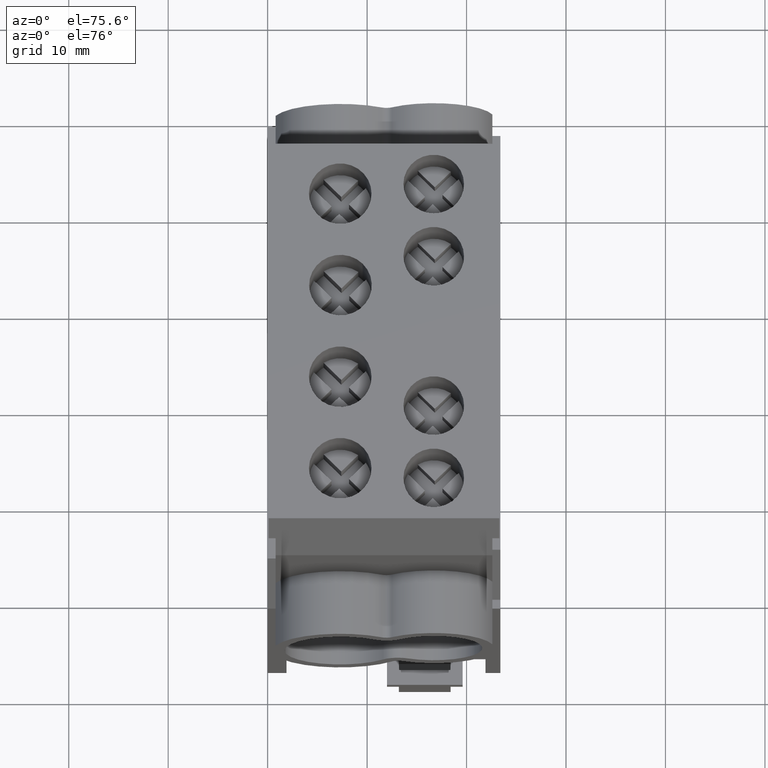
[diagram: clean part render]
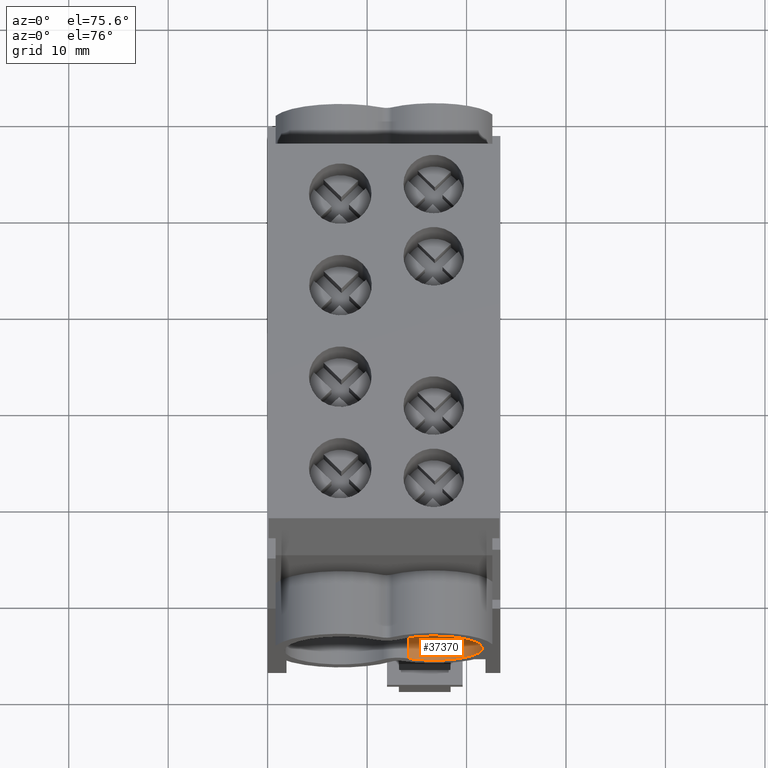
[diagram: same view with one face highlighted and labeled with its STEP entity id]
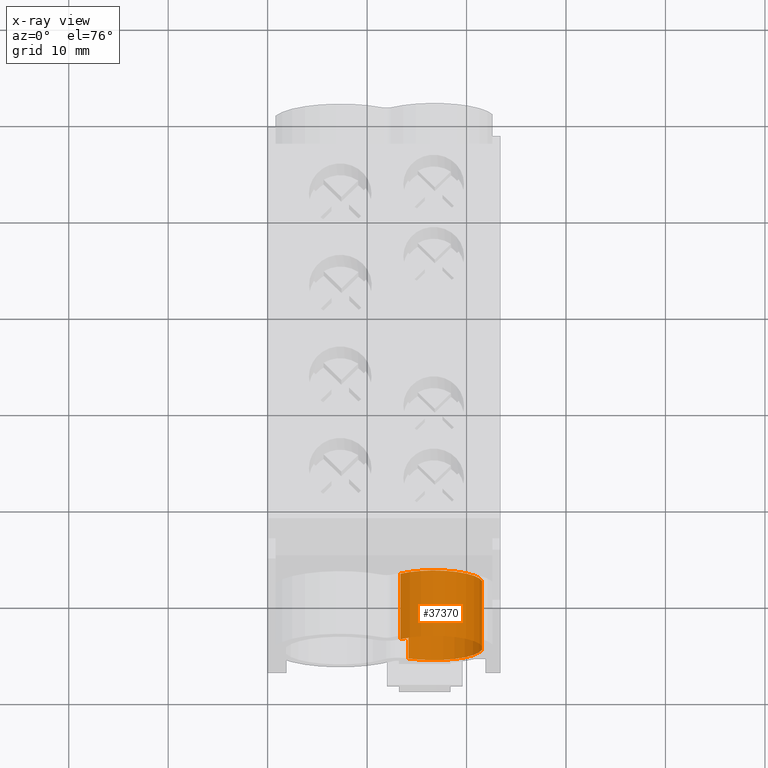
[diagram: x-ray of the same camera — body ghosted, the highlighted face saturated]
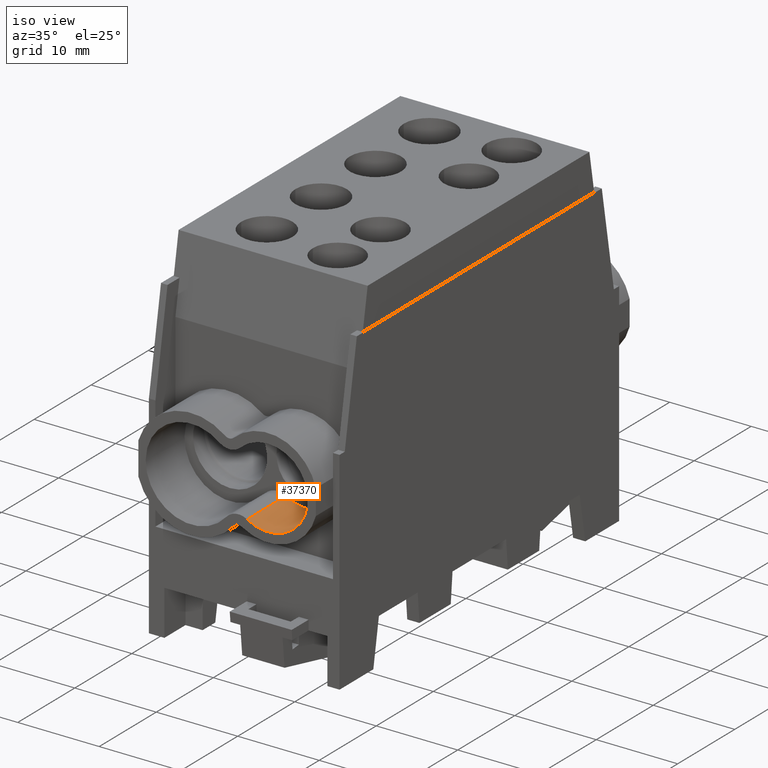
[diagram: same view with one face highlighted and labeled with its STEP entity id]
A machine part, auxiliary view. The second image highlights one B-rep face of the part: STEP entity #37370.
The next image is the same camera in x-ray: the body ghosted, the highlighted face saturated — about 0% of this face is hidden behind the body in this view.
A second angle (iso view) of the same face is appended — the face is thin or edge-on in the first view.
In plain terms, the highlighted cylindrical surface (partial cylindrical patch) has radius 4.9 mm, axis along (0, -1, 0).
Its self-contained STEP definition (entity closure, byte-faithful):
#6110=CARTESIAN_POINT('',(5.00000000000001,-27.5,8.19999999999999));
#6120=DIRECTION('',(0.,-1.,0.));
#6130=DIRECTION('',(0.,0.,-1.));
#6140=AXIS2_PLACEMENT_3D('',#6110,#6120,#6130);
#6150=CIRCLE('',#6140,4.9);
#6160=CARTESIAN_POINT('',(2.45328816581498,-27.5,4.01380138626677));
#6170=VERTEX_POINT('',#6160);
#6180=CARTESIAN_POINT('',(1.6295738610946,-27.5,11.7567158506385));
#6190=VERTEX_POINT('',#6180);
#6200=EDGE_CURVE('',#6170,#6190,#6150,.T.);
#37060=CARTESIAN_POINT('',(5.00000000000001,-27.5,8.19999999999999));
#37070=DIRECTION('',(0.,-1.,0.));
#37080=DIRECTION('',(0.,0.,-1.));
#37090=AXIS2_PLACEMENT_3D('',#37060,#37070,#37080);
#37100=CYLINDRICAL_SURFACE('',#37090,4.9);
#37110=ORIENTED_EDGE('',*,*,#6200,.T.);
#37120=CARTESIAN_POINT('',(2.45328816581499,-19.5,4.01380138626677));
#37130=DIRECTION('',(1.22108605138914E-16,-1.,1.77619756370172E-16));
#37140=VECTOR('',#37130,1.);
#37150=LINE('',#37120,#37140);
#37160=CARTESIAN_POINT('',(2.45328816581499,-20.7,4.01380138626677));
#37170=VERTEX_POINT('',#37160);
#37180=EDGE_CURVE('',#37170,#6170,#37150,.T.);
#37190=ORIENTED_EDGE('',*,*,#37180,.T.);
#37200=CARTESIAN_POINT('',(5.00000000000001,-20.7,8.19999999999999));
#37210=DIRECTION('',(-3.45117804456804E-32,1.,-2.46519032881566E-32));
#37220=DIRECTION('',(0.,0.,1.));
#37230=AXIS2_PLACEMENT_3D('',#37200,#37210,#37220);
#37240=CIRCLE('',#37230,4.9);
#37250=CARTESIAN_POINT('',(1.62957386109459,-20.7,11.7567158506385));
#37260=VERTEX_POINT('',#37250);
#37270=EDGE_CURVE('',#37260,#37170,#37240,.T.);
#37280=ORIENTED_EDGE('',*,*,#37270,.T.);
#37290=CARTESIAN_POINT('',(1.62957386109459,-19.5,11.7567158506385));
#37300=DIRECTION('',(1.22108605138914E-16,-1.,1.77619756370172E-16));
#37310=VECTOR('',#37300,1.);
#37320=LINE('',#37290,#37310);
#37330=EDGE_CURVE('',#37260,#6190,#37320,.T.);
#37340=ORIENTED_EDGE('',*,*,#37330,.F.);
#37350=EDGE_LOOP('',(#37340,#37280,#37190,#37110));
#37360=FACE_OUTER_BOUND('',#37350,.T.);
#37370=ADVANCED_FACE('',(#37360),#37100,.F.);